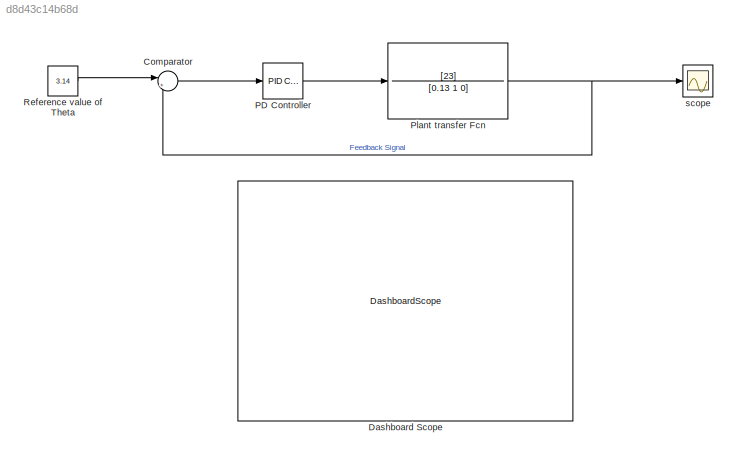
MODEL slx_d8d43c14b68d
KIND model
CONFIG AbsTol = auto
CONFIG EnableMultiTasking = off
CONFIG FixedStep = auto
CONFIG MaxStep = auto
CONFIG MinStep = auto
CONFIG RelTol = 1e-3
CONFIG SampleTimeConstraint = Unconstrained
CONFIG SolverName = VariableStepAuto
CONFIG StartTime = 0.0
CONFIG StopTime = 10.0
BLOCK [Sum] Comparator
  Inputs = |+-
  Ports = [2, 1]
BLOCK [DashboardScope] Dashboard Scope
BLOCK [Reference] PD Controller  REF=pid_lib/PID Controller
  Ports = [1, 1]
  SourceBlock = pid_lib/PID Controller
  SourceProductBaseCode = SL
  SourceType = PID 1dof
BLOCK [TransferFcn] Plant transfer Fcn
  Denominator = [0.13 1 0]
  Numerator = [23]
BLOCK [Constant] Reference value of Theta
  Value = 3.14
BLOCK [Scope] scope
  Floating = off
  NumInputPorts = 1
  Ports = [1]
  ScopeSpecificationString = Simulink.scopes.TimeScopeBlockCfg('CurrentConfiguration', extmgr.ConfigurationSet(extmgr.Configuration('Core','General UI',true),extmgr.Configuration('Core','Source UI',true),extmgr.Configuration('Sources','WiredSimulink',true),extmgr.Configuration('Visuals','Time Domain',true,'SerializedDisplays',{struct('MinYLimReal','-0.39271','MaxYLimReal','3.53435','YLabelReal','Theta ref','MinYLimMag','0.000...<+1504ch>
LINE Comparator:1 -> PD Controller:1
LINE PD Controller:1 -> Plant transfer Fcn:1
NET Plant transfer Fcn:1 -> Comparator:2, scope:1
LINE Reference value of Theta:1 -> Comparator:1
note: NET lines group one-source signal fan-out (src -> all destinations, sorted); 1:1 wires keep LINE
